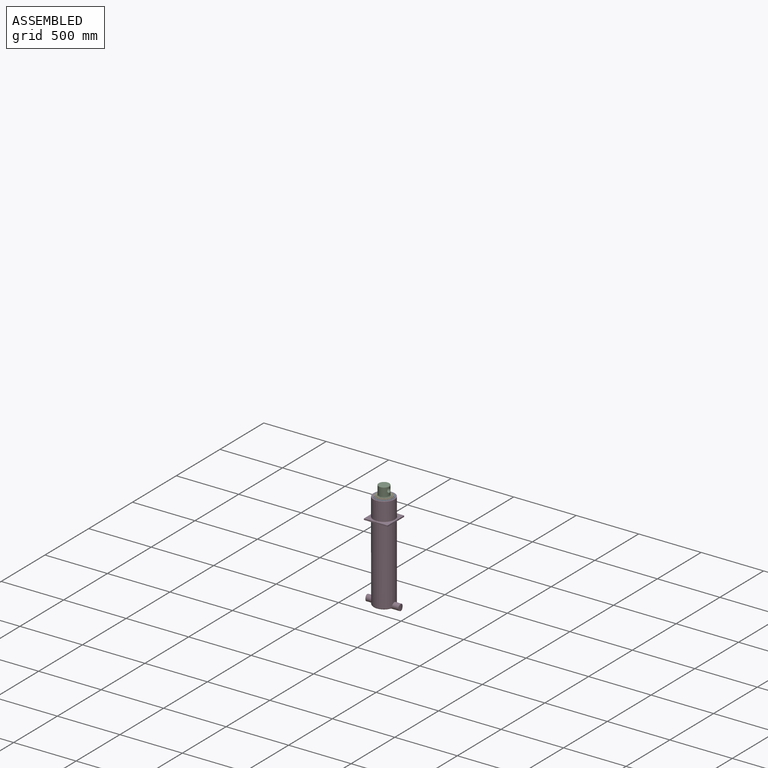
[diagram: assembled view]
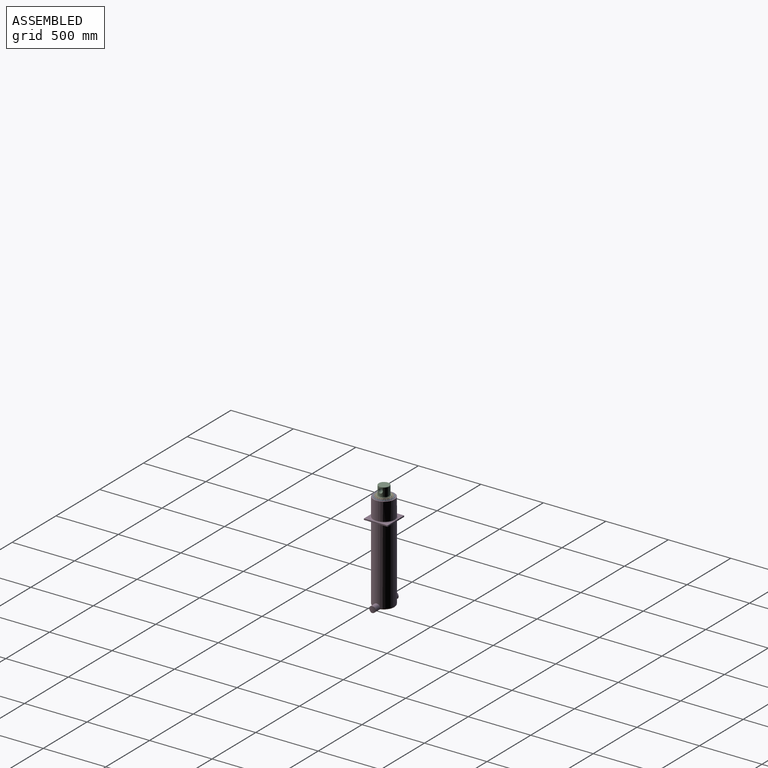
[diagram: assembled view, second angle]
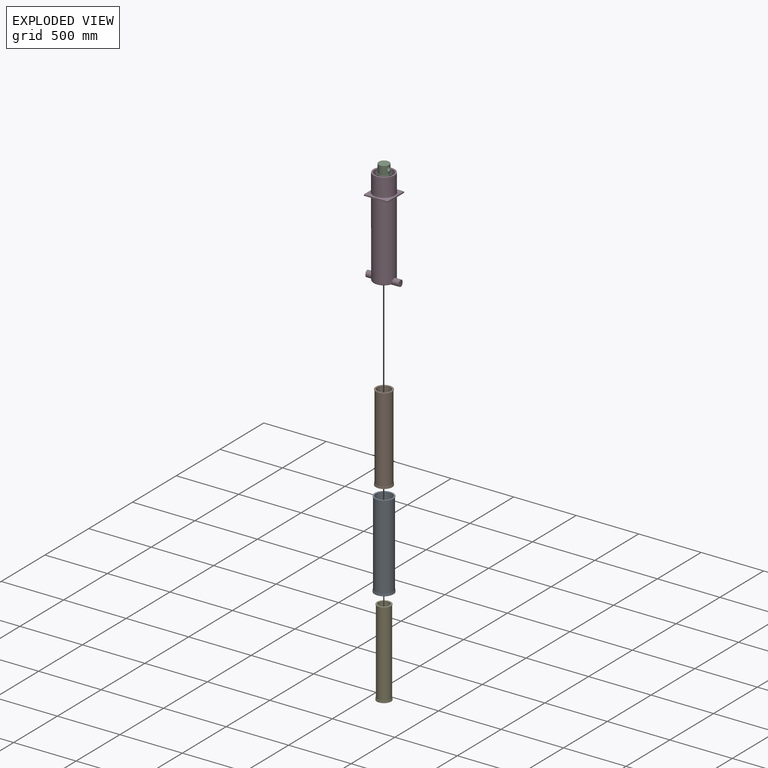
[diagram: exploded view]
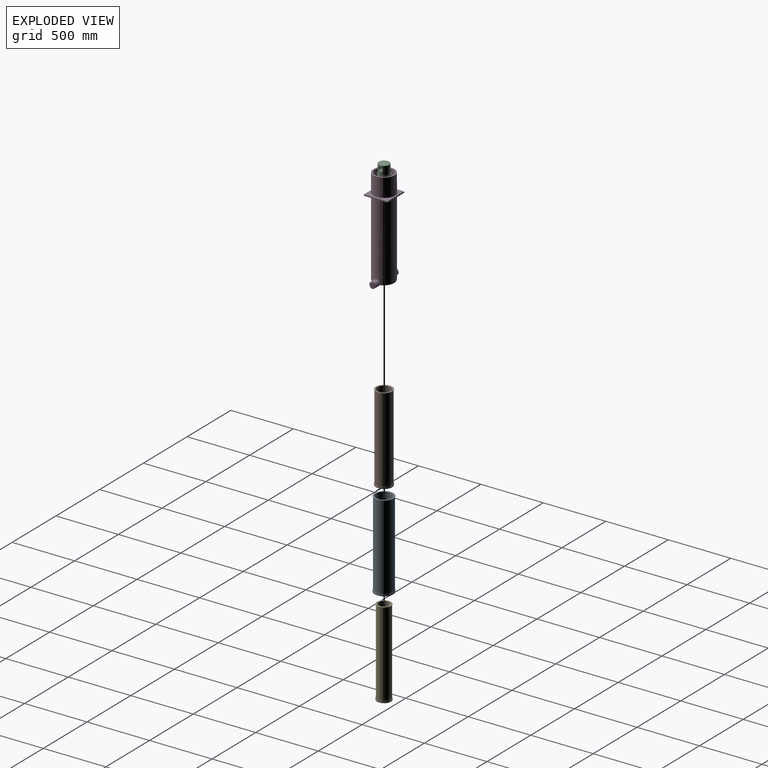
[diagram: exploded view, second angle]
ASSEMBLY  parts=5 mates=4
PART A: 21 faces, bbox 165.7x165.7x692.5 mm
  f0: cylinder r=63mm len=126mm, axis (0,0,-1), area 3562.6mm2, adj f1,f20
  f1: plane 130x130mm, normal (0,0,-1), area 804.2mm2, adj f0,f2
  f2: cylinder r=65mm len=130mm, axis (0,0,-1), area 4084.1mm2, adj f1,f3
  f3: plane 130x130mm, normal (0,0,1), area 804.2mm2, adj f2,f4
  f4: cylinder r=63mm len=126mm, axis (0,0,-1), area 3958.4mm2, adj f3,f5
  f5: plane 130x130mm, normal (0,0,-1), area 804.2mm2, adj f4,f6
  f6: cylinder r=65mm len=130mm, axis (0,0,-1), area 4084.1mm2, adj f5,f7
  f7: plane 130x130mm, normal (0,0,1), area 804.2mm2, adj f6,f8
  f8: cylinder r=63mm len=126mm, axis (0,0,-1), area 3958.4mm2, adj f7,f9
  f9: plane 132x132mm, normal (0,0,-1), area 1215.8mm2, adj f8,f10
  f10: cylinder r=66mm len=642.5mm, axis (0,0,-1), area 266438.5mm2, adj f9,f11
  f11: plane 151x151mm, normal (0,0,-1), area 4223.1mm2, adj f10,f12
  f12: cylinder r=75.5mm len=151mm, axis (0,0,-1), area 2846.3mm2, adj f11,f13
  f13: torus R=75.5mm, axis (0,0,-1), area 2207.2mm2, adj f12,f14
  f14: cylinder r=75.5mm len=151mm, axis (0,0,-1), area 2846.3mm2, adj f13,f15
  f15: plane 151x151mm, normal (0,0,1), area 1394.9mm2, adj f14,f16
  f16: cylinder r=72.5mm len=674.5mm, axis (0,0,-1), area 307255.6mm2, adj f15,f17
  f17: plane 151x151mm, normal (0,0,-1), area 1394.9mm2, adj f16,f18
  f18: cylinder r=75.5mm len=151mm, axis (0,0,-1), area 1423.1mm2, adj f17,f19
  f19: plane 151x151mm, normal (0,0,1), area 5039.9mm2, adj f18,f20
  f20: cone r=64mm half-angle=45deg, axis (0,0,1), area 564.2mm2, adj f0,f19
PART B: 21 faces, bbox 145.2x145.2x692.5 mm
  f0: cylinder r=53.5mm len=107mm, axis (0,0,-1), area 3361.5mm2, adj f1,f19
  f1: plane 111x111mm, normal (0,0,-1), area 684.9mm2, adj f0,f2
  f2: cylinder r=55.5mm len=111mm, axis (0,0,-1), area 3487.2mm2, adj f1,f3
  f3: plane 111x111mm, normal (0,0,1), area 684.9mm2, adj f2,f4
  f4: cylinder r=53.5mm len=107mm, axis (0,0,-1), area 3361.5mm2, adj f3,f5
  f5: plane 113x113mm, normal (0,0,-1), area 1036.7mm2, adj f4,f6
  f6: cylinder r=56.5mm len=642.5mm, axis (0,0,-1), area 228087.5mm2, adj f5,f7
  f7: plane 132x132mm, normal (0,0,-1), area 3656mm2, adj f6,f8
  f8: cylinder r=66mm len=132mm, axis (0,0,-1), area 2488.1mm2, adj f7,f9
  f9: torus R=66mm, axis (0,0,-1), area 1925.9mm2, adj f8,f10
  f10: cylinder r=66mm len=132mm, axis (0,0,-1), area 2488.1mm2, adj f9,f11
  f11: plane 132x132mm, normal (0,0,1), area 1215.8mm2, adj f10,f12
  f12: cylinder r=63mm len=674.5mm, axis (0,0,-1), area 266994.5mm2, adj f11,f13
  f13: plane 132x132mm, normal (0,0,-1), area 1215.8mm2, adj f12,f14
  f14: cylinder r=66mm len=132mm, axis (0,0,-1), area 1244.1mm2, adj f13,f15
  f15: plane 132x132mm, normal (0,0,1), area 4353.5mm2, adj f14,f20
  f16: cylinder r=53.5mm len=107mm, axis (0,0,-1), area 3025.4mm2, adj f17,f20
  f17: plane 111x111mm, normal (0,0,-1), area 684.9mm2, adj f16,f18
  f18: cylinder r=55.5mm len=111mm, axis (0,0,-1), area 3487.2mm2, adj f17,f19
  f19: plane 111x111mm, normal (0,0,1), area 684.9mm2, adj f0,f18
  f20: cone r=54.5mm half-angle=45deg, axis (0,0,1), area 479.8mm2, adj f15,f16
PART C: 13 faces, bbox 104.1x104.1x764.5 mm
  f0: plane 94x94mm, normal (0,0,1), area 1131mm2, adj f1,f11
  f1: cylinder r=43mm len=86mm, axis (0,0,-1), area 16561.6mm2, adj f0,f2,f12
  f2: torus R=40mm, axis (0,0,-1), area 1240.9mm2, adj f1,f3
  f3: plane 80x80mm, normal (0,0,1), area 5026.5mm2, adj f2
  f4: plane 94x94mm, normal (0,0,-1), area 6939.8mm2, adj f5
  f5: cylinder r=47mm len=94mm, axis (0,0,-1), area 1771.9mm2, adj f4,f6
  f6: torus R=47mm, axis (0,0,-1), area 1363.3mm2, adj f5,f7
  f7: cylinder r=47mm len=94mm, axis (0,0,-1), area 1771.9mm2, adj f6,f8
  f8: plane 94x94mm, normal (0,0,1), area 857.7mm2, adj f7,f9
  f9: cylinder r=44mm len=674.5mm, axis (0,0,-1), area 186472.4mm2, adj f8,f10
  f10: plane 94x94mm, normal (0,0,-1), area 857.7mm2, adj f9,f11
  f11: cylinder r=47mm len=94mm, axis (0,0,-1), area 885.9mm2, adj f0,f10
  f12: cylinder r=18mm len=86mm, axis (1,0,0), area 9284.5mm2, adj f1
PART D: 42 faces, bbox 270x202.5x793 mm
  f0: cylinder r=85mm len=773mm, axis (0,0,-1), area 399705.8mm2, adj f12,f19,f21,f22,f25,f26,f30,f34
  f1: cylinder r=76.5mm len=703mm, axis (0,0,-1), area 337343.3mm2, adj f2,f3,f11,f20
  f2: plane 147.68x56.5mm, normal (0,0,1), area 6167.9mm2, adj f1,f20
  f3: plane 147.68x56.5mm, normal (0,0,1), area 6167.9mm2, adj f1,f20
  f4: plane 144.57x55mm, normal (0,0,-1), area 5871.7mm2, adj f19,f22
  f5: plane 144.57x55mm, normal (0,0,-1), area 5871.7mm2, adj f19,f21
  f6: cylinder r=72.5mm len=145mm, axis (0,0,-1), area 4555.3mm2, adj f7,f16
  f7: plane 149x149mm, normal (0,0,-1), area 923.6mm2, adj f6,f8
  f8: cylinder r=74.5mm len=149mm, axis (0,0,-1), area 4681mm2, adj f7,f9
  f9: plane 149x149mm, normal (0,0,1), area 923.6mm2, adj f8,f10
  f10: cylinder r=72.5mm len=145mm, axis (0,0,-1), area 4555.3mm2, adj f9,f11
  f11: plane 153x153mm, normal (0,0,-1), area 1872.4mm2, adj f1,f10
  f12: plane 170x170mm, normal (0,0,1), area 5726.3mm2, adj f0,f23
  f13: cylinder r=72.5mm len=145mm, axis (0,0,-1), area 4099.8mm2, adj f14,f23
  f14: plane 149x149mm, normal (0,0,-1), area 923.6mm2, adj f13,f15
  f15: cylinder r=74.5mm len=149mm, axis (0,0,-1), area 4681mm2, adj f14,f16
  f16: plane 149x149mm, normal (0,0,1), area 923.6mm2, adj f6,f15
  f17: cylinder r=85mm len=50mm, axis (0,0,-1), area 1985.2mm2, adj f19
  f18: cylinder r=85mm len=50mm, axis (0,0,-1), area 1985.2mm2, adj f19
  f19: cylinder r=25mm len=270mm, axis (-1,0,0), area 23610.7mm2, adj f0,f4,f5,f17,f18,f21,f22
  f20: cylinder r=25mm len=153mm, axis (-1,0,0), area 7001.4mm2, adj f1,f2,f3
  f21: torus R=75mm, axis (0,0,1), area 3315.3mm2, adj f0,f5,f19
  f22: torus R=75mm, axis (0,0,1), area 3315.3mm2, adj f0,f4,f19
  f23: cone r=73.5mm half-angle=45deg, axis (0,0,1), area 648.7mm2, adj f12,f13
  f24: plane 94.5x10mm, normal (0,1,0), area 945mm2, adj f25,f28,f29,f37
  f25: plane 20.02x10.02mm, normal (-1,0,0), area 110.7mm2, adj f0,f24,f29,f37,f39,f41
  f26: plane 20.02x10.02mm, normal (-1,0,0), area 110.7mm2, adj f0,f27,f29,f37,f39,f41
  f27: plane 94.5x10mm, normal (0,-1,0), area 945mm2, adj f26,f28,f29,f37
  f28: plane 190x10mm, normal (1,0,0), area 1900mm2, adj f24,f27,f29,f37
  f29: plane 190x94.5mm, normal (0,0,-1), area 5321.5mm2, adj f24,f25,f26,f27,f28,f41
  f30: plane 20.02x10.02mm, normal (1,0,0), area 110.7mm2, adj f0,f31,f35,f36,f38,f40
  f31: plane 94.5x10mm, normal (0,1,0), area 945mm2, adj f30,f32,f35,f36
  f32: plane 190x10mm, normal (-1,0,0), area 1900mm2, adj f31,f33,f35,f36
  f33: plane 94.5x10mm, normal (0,-1,0), area 945mm2, adj f32,f34,f35,f36
  f34: plane 20.02x10.02mm, normal (1,0,0), area 110.7mm2, adj f0,f33,f35,f36,f38,f40
  f35: plane 190x94.5mm, normal (0,0,-1), area 5321.5mm2, adj f30,f31,f32,f33,f34,f40
  f36: plane 190x94.5mm, normal (0,0,1), area 5321.5mm2, adj f30,f31,f32,f33,f34,f38
  f37: plane 190x94.5mm, normal (0,0,1), area 5321.5mm2, adj f24,f25,f26,f27,f28,f39
  f38: torus R=90mm, axis (0,0,1), area 2134.3mm2, adj f0,f30,f34,f36
  f39: torus R=90mm, axis (0,0,1), area 2134.3mm2, adj f0,f25,f26,f37
  f40: torus R=90mm, axis (0,0,1), area 2134.3mm2, adj f0,f30,f34,f35
  f41: torus R=90mm, axis (0,0,1), area 2134.3mm2, adj f0,f25,f26,f29
PART E: 20 faces, bbox 124.6x124.6x692.5 mm
  f0: plane 113x113mm, normal (0,0,1), area 1036.7mm2, adj f1,f19
  f1: cylinder r=53.5mm len=674.5mm, axis (0,0,-1), area 226733.5mm2, adj f0,f2
  f2: plane 113x113mm, normal (0,0,-1), area 1036.7mm2, adj f1,f3
  f3: cylinder r=56.5mm len=113mm, axis (0,0,-1), area 1065mm2, adj f2,f4
  f4: plane 113x113mm, normal (0,0,1), area 3946.6mm2, adj f3,f5
  f5: cylinder r=44mm len=88mm, axis (0,0,-1), area 2764.6mm2, adj f4,f6
  f6: plane 92x92mm, normal (0,0,-1), area 565.5mm2, adj f5,f7
  f7: cylinder r=46mm len=92mm, axis (0,0,-1), area 2890.3mm2, adj f6,f8
  f8: plane 92x92mm, normal (0,0,1), area 565.5mm2, adj f7,f9
  f9: cylinder r=44mm len=88mm, axis (0,0,-1), area 2764.6mm2, adj f8,f10
  f10: plane 92x92mm, normal (0,0,-1), area 565.5mm2, adj f9,f11
  f11: cylinder r=46mm len=92mm, axis (0,0,-1), area 2890.3mm2, adj f10,f12
  f12: plane 92x92mm, normal (0,0,1), area 565.5mm2, adj f11,f13
  f13: cylinder r=44mm len=88mm, axis (0,0,-1), area 2764.6mm2, adj f12,f14
  f14: plane 94x94mm, normal (0,0,-1), area 857.7mm2, adj f13,f15
  f15: cylinder r=47mm len=642.5mm, axis (0,0,-1), area 189736.5mm2, adj f14,f16
  f16: plane 113x113mm, normal (0,0,-1), area 3089mm2, adj f15,f17
  f17: cylinder r=56.5mm len=113mm, axis (0,0,-1), area 2130mm2, adj f16,f18
  f18: torus R=56.5mm, axis (0,0,-1), area 1644.6mm2, adj f17,f19
  f19: cylinder r=56.5mm len=113mm, axis (0,0,-1), area 2130mm2, adj f0,f18
PLACE A t=(-375.89,-86.8,-118.71)mm
PLACE B t=(-375.89,-86.8,-115.71)mm
PLACE C t=(-375.89,-86.8,-94.71)mm
PLACE D rot(axis=(0.86,0.27,-0.43),0deg) t=(-375.89,-86.8,-182.71)mm fixed
PLACE E t=(-375.89,-86.8,-97.71)mm
MATE slider B.f0 <-> A.f0  axis (0,0,-1) through (-375.89,-86.8,573.79)mm
MATE slider A.f0 <-> D.f0  axis (0,0,-1) through (-375.89,-86.8,-103.71)mm
MATE slider C.f1 <-> E.f1  axis (0,0,-1) through (-375.89,-86.8,579.79)mm
MATE slider E.f1 <-> B.f0  axis (0,0,-1) through (-375.89,-86.8,576.79)mm
